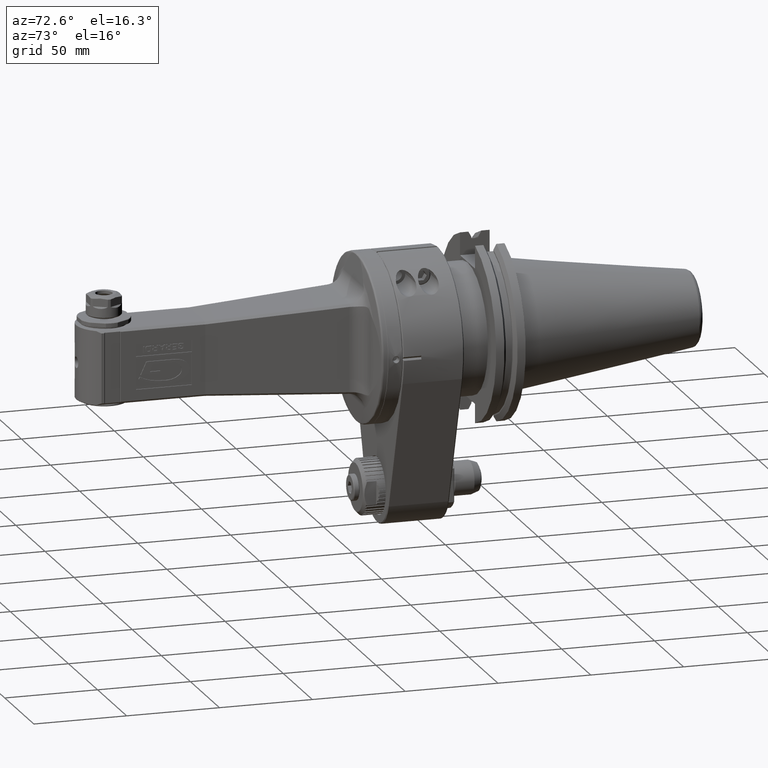
[diagram: clean part render]
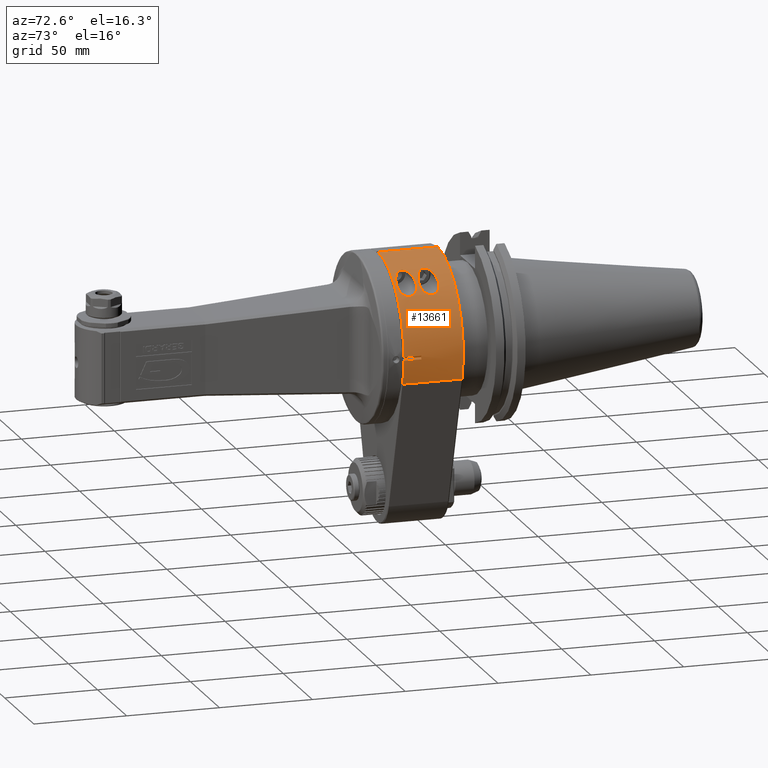
[diagram: same view with one face highlighted and labeled with its STEP entity id]
A machine part, auxiliary view. The second image highlights one B-rep face of the part: STEP entity #13661.
In plain terms, the highlighted cylindrical surface (partial cylindrical patch) has radius 45 mm, axis along (0, 1, 0).
Its self-contained STEP definition (entity closure, byte-faithful):
#440=FACE_BOUND('',#2264,.T.);
#441=FACE_BOUND('',#2265,.T.);
#1420=FACE_OUTER_BOUND('',#2263,.T.);
#2263=EDGE_LOOP('',(#11754,#11755,#11756,#11757,#11758,#11759,#11760,#11761));
#2264=EDGE_LOOP('',(#11762,#11763));
#2265=EDGE_LOOP('',(#11764,#11765));
#2797=CIRCLE('',#14616,45.);
#2799=CIRCLE('',#14621,45.);
#2802=CIRCLE('',#14626,45.);
#2953=CIRCLE('',#14947,45.);
#3665=LINE('',#22864,#4830);
#3669=LINE('',#22872,#4834);
#3677=LINE('',#22903,#4842);
#3903=LINE('',#24522,#5068);
#4830=VECTOR('',#17222,9.499738308914);
#4834=VECTOR('',#17228,9.499737834386);
#4842=VECTOR('',#17244,10.);
#5068=VECTOR('',#18114,31.99972219508);
#5559=B_SPLINE_CURVE_WITH_KNOTS('',3,(#24528,#24529,#24530,#24531,#24532,
#24533,#24534,#24535,#24536,#24537,#24538,#24539,#24540,#24541,#24542,#24543,
#24544,#24545,#24546,#24547,#24548,#24549,#24550),.UNSPECIFIED.,.F.,.F.,
(4,2,2,2,2,3,2,2,2,2,4),(-1.14650177911681,-0.782118711859802,-0.417735644602789,
-0.208867822301395,-0.104433911150697,0.,0.104433911150697,0.208867822301395,
0.417735644602789,0.782118711859802,1.14650177911681),.UNSPECIFIED.);
#5560=B_SPLINE_CURVE_WITH_KNOTS('',3,(#24551,#24552,#24553,#24554,#24555,
#24556,#24557,#24558,#24559,#24560,#24561,#24562,#24563,#24564,#24565,#24566,
#24567,#24568,#24569,#24570),.UNSPECIFIED.,.F.,.F.,(4,2,2,2,2,2,2,2,2,4),
(1.14650177911681,1.42316705646968,1.69983233382254,1.91463594485582,2.02203775037247,
2.12943955588911,2.3217079428636,2.51397632983809,2.81307214595482,3.11216796207156),
 .UNSPECIFIED.);
#5561=B_SPLINE_CURVE_WITH_KNOTS('',3,(#24573,#24574,#24575,#24576,#24577,
#24578,#24579,#24580,#24581,#24582,#24583,#24584,#24585,#24586,#24587,#24588,
#24589,#24590,#24591,#24592),.UNSPECIFIED.,.F.,.F.,(4,2,2,2,2,2,2,2,2,4),
(1.12703774249658,1.40370301984945,1.68036829720231,1.89517190823559,2.00257371375224,
2.10997551926888,2.30224390624337,2.49451229321786,2.79360810933459,3.09270392545133),
 .UNSPECIFIED.);
#5562=B_SPLINE_CURVE_WITH_KNOTS('',3,(#24593,#24594,#24595,#24596,#24597,
#24598,#24599,#24600,#24601,#24602,#24603,#24604,#24605,#24606,#24607,#24608,
#24609,#24610,#24611,#24612,#24613,#24614,#24615),.UNSPECIFIED.,.F.,.F.,
(4,2,2,2,2,3,2,2,2,2,4),(3.09270392545133,3.45708699270834,3.82147005996535,
4.03033788226675,4.13477179341745,4.23920570456814,4.33003417437082,4.4208626441735,
4.72757109503348,5.0469072710491,5.36624344706473),.UNSPECIFIED.);
#6322=VERTEX_POINT('',#22855);
#6323=VERTEX_POINT('',#22859);
#6324=VERTEX_POINT('',#22863);
#6326=VERTEX_POINT('',#22869);
#6327=VERTEX_POINT('',#22871);
#6328=VERTEX_POINT('',#22875);
#6330=VERTEX_POINT('',#22882);
#6340=VERTEX_POINT('',#22909);
#6603=VERTEX_POINT('',#24526);
#6604=VERTEX_POINT('',#24527);
#6605=VERTEX_POINT('',#24571);
#6606=VERTEX_POINT('',#24572);
#7955=EDGE_CURVE('',#6323,#6322,#2797,.T.);
#7956=EDGE_CURVE('',#6323,#6324,#3665,.T.);
#7960=EDGE_CURVE('',#6326,#6327,#3669,.T.);
#7962=EDGE_CURVE('',#6328,#6327,#2799,.T.);
#7973=EDGE_CURVE('',#6328,#6330,#3677,.T.);
#7976=EDGE_CURVE('',#6340,#6330,#2802,.T.);
#8404=EDGE_CURVE('',#6340,#6322,#3903,.T.);
#8405=EDGE_CURVE('',#6324,#6326,#2953,.T.);
#8406=EDGE_CURVE('',#6603,#6604,#5559,.T.);
#8407=EDGE_CURVE('',#6604,#6603,#5560,.T.);
#8408=EDGE_CURVE('',#6605,#6606,#5561,.T.);
#8409=EDGE_CURVE('',#6606,#6605,#5562,.T.);
#11754=ORIENTED_EDGE('',*,*,#8405,.F.);
#11755=ORIENTED_EDGE('',*,*,#7956,.F.);
#11756=ORIENTED_EDGE('',*,*,#7955,.T.);
#11757=ORIENTED_EDGE('',*,*,#8404,.F.);
#11758=ORIENTED_EDGE('',*,*,#7976,.T.);
#11759=ORIENTED_EDGE('',*,*,#7973,.F.);
#11760=ORIENTED_EDGE('',*,*,#7962,.T.);
#11761=ORIENTED_EDGE('',*,*,#7960,.F.);
#11762=ORIENTED_EDGE('',*,*,#8406,.T.);
#11763=ORIENTED_EDGE('',*,*,#8407,.T.);
#11764=ORIENTED_EDGE('',*,*,#8408,.F.);
#11765=ORIENTED_EDGE('',*,*,#8409,.F.);
#13069=CYLINDRICAL_SURFACE('',#14946,45.);
#13661=ADVANCED_FACE('',(#1420,#440,#441),#13069,.T.);
#14616=AXIS2_PLACEMENT_3D('',#22861,#17218,#17219);
#14621=AXIS2_PLACEMENT_3D('',#22876,#17233,#17234);
#14626=AXIS2_PLACEMENT_3D('',#22910,#17251,#17252);
#14946=AXIS2_PLACEMENT_3D('',#24524,#18117,#18118);
#14947=AXIS2_PLACEMENT_3D('',#24525,#18119,#18120);
#17218=DIRECTION('center_axis',(0.,1.,0.));
#17219=DIRECTION('ref_axis',(0.999758397003229,0.,-0.0219806192254606));
#17222=DIRECTION('',(1.024182073693E-10,1.,4.661858822775E-9));
#17228=DIRECTION('',(4.240621114015E-10,-1.,-1.928818786212E-8));
#17233=DIRECTION('center_axis',(0.,1.,0.));
#17234=DIRECTION('ref_axis',(0.0166666666666402,0.,0.99986110146471));
#17244=DIRECTION('',(0.,1.,0.));
#17251=DIRECTION('center_axis',(0.,-1.,0.));
#17252=DIRECTION('ref_axis',(1.,0.,0.));
#18114=DIRECTION('',(4.996046983514E-14,-1.,-1.6264908513E-14));
#18117=DIRECTION('center_axis',(0.,1.,0.));
#18118=DIRECTION('ref_axis',(1.,0.,0.));
#18119=DIRECTION('center_axis',(0.,-1.,0.));
#18120=DIRECTION('ref_axis',(0.999758397003229,0.,-0.0219806192254506));
#22855=CARTESIAN_POINT('',(42.7462992793599,0.500131179262622,-14.0625000850757));
#22859=CARTESIAN_POINT('',(44.9891278584205,0.500261774562478,-0.98912792267182));
#22861=CARTESIAN_POINT('Origin',(8.446576771348E-13,0.5002617834513,6.052935930256E-13));
#22863=CARTESIAN_POINT('',(44.98912786515,10.,-0.989127865146));
#22864=CARTESIAN_POINT('',(44.98912786417,0.5002616910859,-0.9891279094325));
#22869=CARTESIAN_POINT('',(44.98912786515,10.,0.9891278651445));
#22871=CARTESIAN_POINT('',(44.9891278900196,0.500261813725121,0.989127620016448));
#22872=CARTESIAN_POINT('',(44.98912786515,10.,0.9891278651445));
#22875=CARTESIAN_POINT('',(0.750000000006791,0.500261782757273,44.9937495656246));
#22876=CARTESIAN_POINT('Origin',(8.446576771348E-13,0.5002617834532,6.052935930256E-13));
#22882=CARTESIAN_POINT('',(0.75000000000679,32.4997382172455,44.993749565624));
#22903=CARTESIAN_POINT('',(0.75,0.,44.9937495659119));
#22909=CARTESIAN_POINT('',(42.7462992793588,32.4998688207349,-14.0625000850786));
#22910=CARTESIAN_POINT('Origin',(-4.174438572591E-13,32.49973821655,-9.015010959956E-14));
#24522=CARTESIAN_POINT('',(42.74629916601,32.49986109754,-14.06250004779));
#24524=CARTESIAN_POINT('Origin',(0.,0.,0.));
#24525=CARTESIAN_POINT('Origin',(0.,10.,0.));
#24526=CARTESIAN_POINT('',(28.28427124746,1.75,35.));
#24527=CARTESIAN_POINT('',(28.2842712474619,12.25,35.));
#24528=CARTESIAN_POINT('Ctrl Pts',(28.2842712474619,1.75,35.));
#24529=CARTESIAN_POINT('Ctrl Pts',(27.3395744064252,1.75,35.7634303342429));
#24530=CARTESIAN_POINT('Ctrl Pts',(26.2844532844903,1.92201917330533,36.5476501176263));
#24531=CARTESIAN_POINT('Ctrl Pts',(24.1877886998845,2.59849344728223,37.9678032398534));
#24532=CARTESIAN_POINT('Ctrl Pts',(23.1451580209524,3.09643341814543,38.6052267894512));
#24533=CARTESIAN_POINT('Ctrl Pts',(21.736027942972,4.10795048147965,39.4067759231211));
#24534=CARTESIAN_POINT('Ctrl Pts',(21.205197932326,4.57457338079454,39.6931515616155));
#24535=CARTESIAN_POINT('Ctrl Pts',(20.6004725359246,5.39847605858281,40.0084016967221));
#24536=CARTESIAN_POINT('Ctrl Pts',(20.4308787949815,5.6935599483935,40.0948518926029));
#24537=CARTESIAN_POINT('Ctrl Pts',(20.1921836667419,6.32028195020684,40.2155882536973));
#24538=CARTESIAN_POINT('Ctrl Pts',(20.1230589126007,6.65188696283101,40.25));
#24539=CARTESIAN_POINT('Ctrl Pts',(20.1230589126007,7.,40.25));
#24540=CARTESIAN_POINT('Ctrl Pts',(20.1230589126007,7.34811303716899,40.25));
#24541=CARTESIAN_POINT('Ctrl Pts',(20.1921836667419,7.67971804979316,40.2155882536973));
#24542=CARTESIAN_POINT('Ctrl Pts',(20.4308787949815,8.3064400516065,40.0948518926029));
#24543=CARTESIAN_POINT('Ctrl Pts',(20.6004725359246,8.60152394141719,40.0084016967221));
#24544=CARTESIAN_POINT('Ctrl Pts',(21.205197932326,9.42542661920546,39.6931515616155));
#24545=CARTESIAN_POINT('Ctrl Pts',(21.736027942972,9.89204951852035,39.4067759231211));
#24546=CARTESIAN_POINT('Ctrl Pts',(23.1451580209524,10.9035665818546,38.6052267894512));
#24547=CARTESIAN_POINT('Ctrl Pts',(24.1877886998846,11.4015065527178,37.9678032398534));
#24548=CARTESIAN_POINT('Ctrl Pts',(26.2844532844903,12.0779808266947,36.5476501176263));
#24549=CARTESIAN_POINT('Ctrl Pts',(27.3395744064252,12.25,35.7634303342429));
#24550=CARTESIAN_POINT('Ctrl Pts',(28.2842712474619,12.25,35.));
#24551=CARTESIAN_POINT('Ctrl Pts',(28.2842712474619,12.25,35.));
#24552=CARTESIAN_POINT('Ctrl Pts',(29.0015515961545,12.25,34.4203499444887));
#24553=CARTESIAN_POINT('Ctrl Pts',(29.7639205151206,12.1496349974932,33.7642896784261));
#24554=CARTESIAN_POINT('Ctrl Pts',(31.1742531823703,11.6505831755753,32.4666621976752));
#24555=CARTESIAN_POINT('Ctrl Pts',(31.8224991380334,11.2505436414047,31.825922438946));
#24556=CARTESIAN_POINT('Ctrl Pts',(32.7474159380966,10.2944251270807,30.8698039246219));
#24557=CARTESIAN_POINT('Ctrl Pts',(33.1199555105931,9.73942525702287,30.4665647266752));
#24558=CARTESIAN_POINT('Ctrl Pts',(33.5004710769903,8.7727316964671,30.0458680561456));
#24559=CARTESIAN_POINT('Ctrl Pts',(33.5990174805533,8.42856425585664,29.9351933925568));
#24560=CARTESIAN_POINT('Ctrl Pts',(33.7302599443358,7.72120618850676,29.7872345674845));
#24561=CARTESIAN_POINT('Ctrl Pts',(33.7629604744608,7.35800601838881,29.75));
#24562=CARTESIAN_POINT('Ctrl Pts',(33.7629604744608,6.3591053767517,29.75));
#24563=CARTESIAN_POINT('Ctrl Pts',(33.6535722435166,5.69196516153304,29.8753243939876));
#24564=CARTESIAN_POINT('Ctrl Pts',(33.2348069350089,4.4975517288865,30.3404935517149));
#24565=CARTESIAN_POINT('Ctrl Pts',(32.92521356894,3.96965246139063,30.6785341111395));
#24566=CARTESIAN_POINT('Ctrl Pts',(32.0579130177422,2.9202859878695,31.5891783172573));
#24567=CARTESIAN_POINT('Ctrl Pts',(31.3794339061692,2.45225126821455,32.2703807384322));
#24568=CARTESIAN_POINT('Ctrl Pts',(29.8806786317571,1.86725997996511,33.6629083638159));
#24569=CARTESIAN_POINT('Ctrl Pts',(29.0597048448016,1.75,34.3733550228128));
#24570=CARTESIAN_POINT('Ctrl Pts',(28.2842712474619,1.75,35.));
#24571=CARTESIAN_POINT('',(28.28427124746,13.75,35.));
#24572=CARTESIAN_POINT('',(28.2842712474619,24.25,35.));
#24573=CARTESIAN_POINT('Ctrl Pts',(28.2842712474619,13.75,35.));
#24574=CARTESIAN_POINT('Ctrl Pts',(29.0015515961545,13.75,34.4203499444887));
#24575=CARTESIAN_POINT('Ctrl Pts',(29.7639205151206,13.8503650025068,33.7642896784261));
#24576=CARTESIAN_POINT('Ctrl Pts',(31.1742531823703,14.3494168244247,32.4666621976752));
#24577=CARTESIAN_POINT('Ctrl Pts',(31.8224991380334,14.7494563585953,31.825922438946));
#24578=CARTESIAN_POINT('Ctrl Pts',(32.7474159380966,15.7055748729193,30.8698039246219));
#24579=CARTESIAN_POINT('Ctrl Pts',(33.1199555105931,16.2605747429771,30.4665647266752));
#24580=CARTESIAN_POINT('Ctrl Pts',(33.5004710769903,17.2272683035329,30.0458680561456));
#24581=CARTESIAN_POINT('Ctrl Pts',(33.5990174805533,17.5714357441434,29.9351933925568));
#24582=CARTESIAN_POINT('Ctrl Pts',(33.7302599443358,18.2787938114932,29.7872345674845));
#24583=CARTESIAN_POINT('Ctrl Pts',(33.7629604744608,18.6419939816112,29.75));
#24584=CARTESIAN_POINT('Ctrl Pts',(33.7629604744608,19.6408946232483,29.75));
#24585=CARTESIAN_POINT('Ctrl Pts',(33.6535722435166,20.308034838467,29.8753243939876));
#24586=CARTESIAN_POINT('Ctrl Pts',(33.2348069350089,21.5024482711135,30.3404935517149));
#24587=CARTESIAN_POINT('Ctrl Pts',(32.92521356894,22.0303475386094,30.6785341111395));
#24588=CARTESIAN_POINT('Ctrl Pts',(32.0579130177422,23.0797140121305,31.5891783172573));
#24589=CARTESIAN_POINT('Ctrl Pts',(31.3794339061692,23.5477487317855,32.2703807384322));
#24590=CARTESIAN_POINT('Ctrl Pts',(29.8806786317571,24.1327400200349,33.6629083638159));
#24591=CARTESIAN_POINT('Ctrl Pts',(29.0597048448016,24.25,34.3733550228128));
#24592=CARTESIAN_POINT('Ctrl Pts',(28.2842712474619,24.25,35.));
#24593=CARTESIAN_POINT('Ctrl Pts',(28.2842712474619,24.25,35.));
#24594=CARTESIAN_POINT('Ctrl Pts',(27.3395744064252,24.25,35.7634303342429));
#24595=CARTESIAN_POINT('Ctrl Pts',(26.2844532844903,24.0779808266947,36.5476501176263));
#24596=CARTESIAN_POINT('Ctrl Pts',(24.1877886998846,23.4015065527178,37.9678032398534));
#24597=CARTESIAN_POINT('Ctrl Pts',(23.1451580209524,22.9035665818546,38.6052267894512));
#24598=CARTESIAN_POINT('Ctrl Pts',(21.736027942972,21.8920495185204,39.4067759231211));
#24599=CARTESIAN_POINT('Ctrl Pts',(21.205197932326,21.4254266192055,39.6931515616155));
#24600=CARTESIAN_POINT('Ctrl Pts',(20.6004725359246,20.6015239414172,40.0084016967221));
#24601=CARTESIAN_POINT('Ctrl Pts',(20.4308787949815,20.3064400516065,40.0948518926029));
#24602=CARTESIAN_POINT('Ctrl Pts',(20.1921836667419,19.6797180497932,40.2155882536973));
#24603=CARTESIAN_POINT('Ctrl Pts',(20.1230589126007,19.348113037169,40.25));
#24604=CARTESIAN_POINT('Ctrl Pts',(20.1230589126007,19.,40.25));
#24605=CARTESIAN_POINT('Ctrl Pts',(20.1230589126007,18.6972384339911,40.25));
#24606=CARTESIAN_POINT('Ctrl Pts',(20.1798103695348,18.375721667411,40.2217557496493));
#24607=CARTESIAN_POINT('Ctrl Pts',(20.3939049512118,17.7722859383486,40.1136263996317));
#24608=CARTESIAN_POINT('Ctrl Pts',(20.5493321444653,17.4895582343389,40.0344723485156));
#24609=CARTESIAN_POINT('Ctrl Pts',(21.2660892189227,16.43879409014,39.6628473262856));
#24610=CARTESIAN_POINT('Ctrl Pts',(22.158919449635,15.7520539680295,39.1766751704882));
#24611=CARTESIAN_POINT('Ctrl Pts',(23.7582841808269,14.8042061252955,38.2288273277543));
#24612=CARTESIAN_POINT('Ctrl Pts',(24.6829448941409,14.4114641674332,37.6432754436484));
#24613=CARTESIAN_POINT('Ctrl Pts',(26.5318999397921,13.8831891092618,36.3637490110355));
#24614=CARTESIAN_POINT('Ctrl Pts',(27.456362642977,13.75,35.6690511867817));
#24615=CARTESIAN_POINT('Ctrl Pts',(28.2842712474619,13.75,35.));